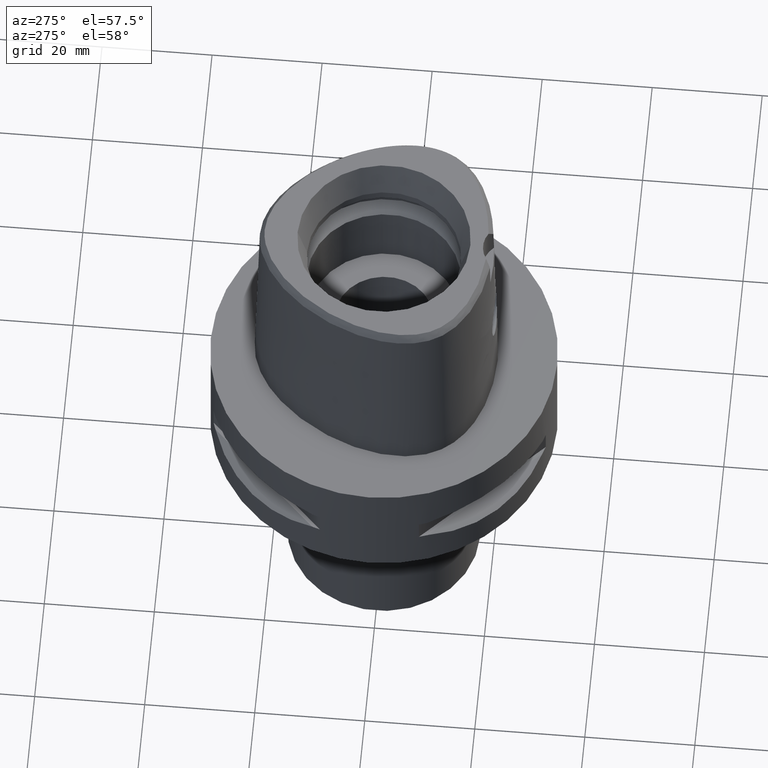
[diagram: clean part render]
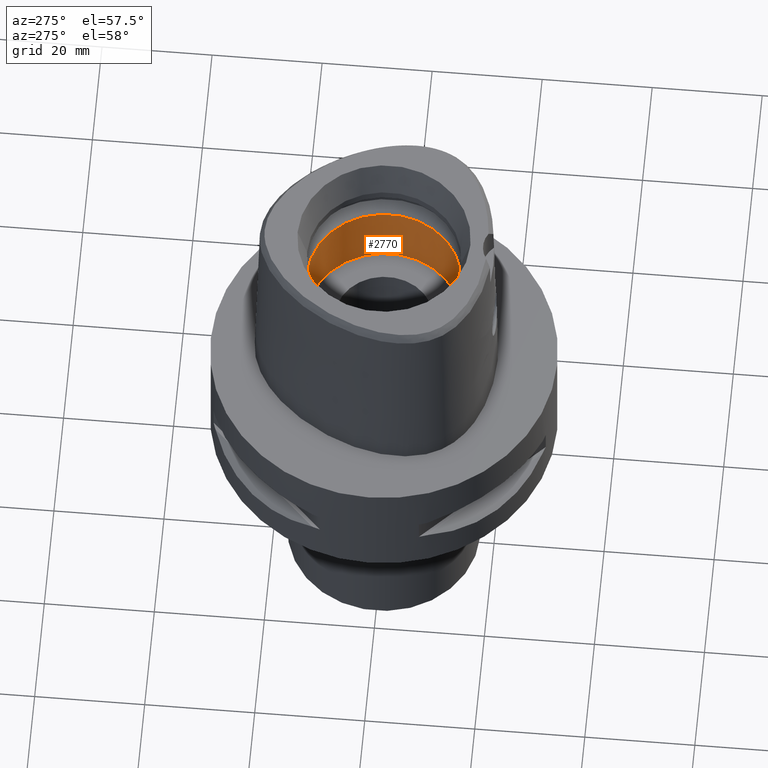
[diagram: same view with one face highlighted and labeled with its STEP entity id]
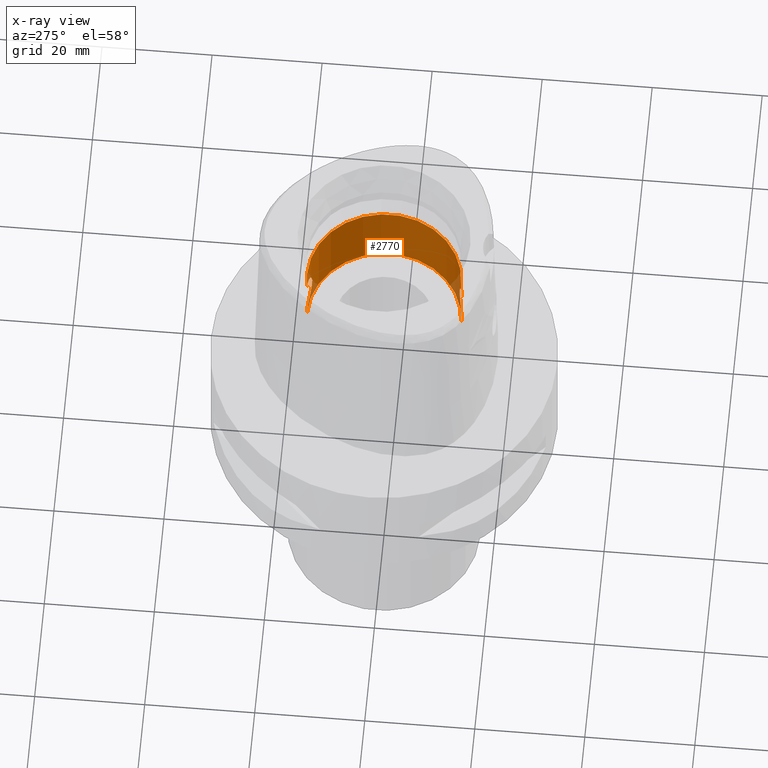
[diagram: x-ray of the same camera — body ghosted, the highlighted face saturated]
A machine part, auxiliary view. The second image highlights one B-rep face of the part: STEP entity #2770.
The next image is the same camera in x-ray: the body ghosted, the highlighted face saturated — about 5% of this face is hidden behind the body in this view.
In plain terms, the highlighted cylindrical surface (partial cylindrical patch) has radius 14 mm, axis along (0, 0, -1).
Its self-contained STEP definition (entity closure, byte-faithful):
#28 = CARTESIAN_POINT ( 'NONE',  ( 1.564210624766627200, 13.91222855110749101, 19.23574712250458418 ) ) ;
#55 = CARTESIAN_POINT ( 'NONE',  ( 3.563130269149018758, 13.54014351603372823, 13.57157088246568932 ) ) ;
#76 = CARTESIAN_POINT ( 'NONE',  ( 1.905613305038924787, -13.87057864225509007, 19.08359231514317855 ) ) ;
#77 = CARTESIAN_POINT ( 'NONE',  ( 3.735585966644410671, 13.49246493437206951, 13.93542173753079183 ) ) ;
#112 = LINE ( 'NONE', #2970, #2820 ) ;
#129 = CARTESIAN_POINT ( 'NONE',  ( 2.696297295243412329, -13.73777050177580250, 18.52227094411475505 ) ) ;
#152 = CARTESIAN_POINT ( 'NONE',  ( 1.467347860776915702, -13.92282749422781052, 19.27490393189151519 ) ) ;
#176 = CARTESIAN_POINT ( 'NONE',  ( 3.036969449543563737, -13.66684610098209873, 12.82026298262619335 ) ) ;
#204 = DIRECTION ( 'NONE',  ( 0.0000000000000000000, 0.0000000000000000000, 1.000000000000000000 ) ) ;
#230 = CARTESIAN_POINT ( 'NONE',  ( 4.028563343506847971, -13.40834963425283455, 15.00910056068194187 ) ) ;
#236 = CARTESIAN_POINT ( 'NONE',  ( 1.467318237211732157, 13.92283067901672311, 11.72508455660882376 ) ) ;
#252 = CARTESIAN_POINT ( 'NONE',  ( 4.050615257898495969, -13.40134231867271275, 15.26307483630576556 ) ) ;
#255 = CARTESIAN_POINT ( 'NONE',  ( 0.0000000000000000000, -14.00000000000000000, 19.55000000000000071 ) ) ;
#271 = CYLINDRICAL_SURFACE ( 'NONE', #721, 14.00000000000000000 ) ;
#276 = VECTOR ( 'NONE', #4521, 1000.000000000000000 ) ;
#343 = CARTESIAN_POINT ( 'NONE',  ( 1.778118724833712694, 13.88617459671725918, 19.13924404090247933 ) ) ;
#368 = CARTESIAN_POINT ( 'NONE',  ( 3.799526332844893606, 13.47459461742394637, 16.90289822853951662 ) ) ;
#390 = CARTESIAN_POINT ( 'NONE',  ( 3.956594754651117540, 13.42963386916571622, 16.37453422178073126 ) ) ;
#415 = CARTESIAN_POINT ( 'NONE',  ( 2.641533738676335563, 13.75094225078649579, 18.59081068668895043 ) ) ;
#441 = CARTESIAN_POINT ( 'NONE',  ( 2.923620669437840824, 13.69136159373058881, 18.30302462415772169 ) ) ;
#485 = CARTESIAN_POINT ( 'NONE',  ( 1.204131520715787662, -13.94803745008500684, 19.36743101498653274 ) ) ;
#489 = DIRECTION ( 'NONE',  ( 0.0000000000000000000, 0.0000000000000000000, 1.000000000000000000 ) ) ;
#562 = VERTEX_POINT ( 'NONE', #3168 ) ;
#563 = CARTESIAN_POINT ( 'NONE',  ( 3.956537715202423033, -13.42965071004100253, 14.62520829552216028 ) ) ;
#583 = FACE_OUTER_BOUND ( 'NONE', #732, .T. ) ;
#599 = CARTESIAN_POINT ( 'NONE',  ( 2.543957654893721720, 13.76654167260480932, 12.34776481925748826 ) ) ;
#613 = CARTESIAN_POINT ( 'NONE',  ( 3.594063061712033491, -13.53275886322805377, 13.61445040981497634 ) ) ;
#619 = CARTESIAN_POINT ( 'NONE',  ( 2.787836229070041139, 13.71962564258199713, 12.56193802601182163 ) ) ;
#639 = CARTESIAN_POINT ( 'NONE',  ( 1.204107660659616608, 13.94803959449837372, 11.63256158311973820 ) ) ;
#664 = CARTESIAN_POINT ( 'NONE',  ( 0.5001887921304404294, 13.99307194593311543, 11.47259148992649891 ) ) ;
#703 = CARTESIAN_POINT ( 'NONE',  ( 3.845331375847745647, 13.46195391861095381, 14.19844437814360916 ) ) ;
#721 = AXIS2_PLACEMENT_3D ( 'NONE', #1323, #4588, #3918 ) ;
#727 = CARTESIAN_POINT ( 'NONE',  ( 3.638093724904270410, 13.51964343916870170, 13.71959749132893869 ) ) ;
#732 = EDGE_LOOP ( 'NONE', ( #3568, #2220, #3025, #2569, #1686, #1899, #1213, #4467 ) ) ;
#776 = CARTESIAN_POINT ( 'NONE',  ( 3.307142086768418920, 13.60519109280302885, 17.84281709866624510 ) ) ;
#801 = CARTESIAN_POINT ( 'NONE',  ( 1.657538681101234701, 13.90132017254255459, 19.19536803047576612 ) ) ;
#827 = CARTESIAN_POINT ( 'NONE',  ( 3.722600532248694805, -13.49608364878876721, 17.09529591117903635 ) ) ;
#873 = CARTESIAN_POINT ( 'NONE',  ( 3.504061043903227368, -13.55592151725730510, 17.53515547141299180 ) ) ;
#905 = CARTESIAN_POINT ( 'NONE',  ( 3.691876156449529489, -13.50467165015234272, 17.16528249247149418 ) ) ;
#909 = DIRECTION ( 'NONE',  ( 0.0000000000000000000, 0.0000000000000000000, -1.000000000000000000 ) ) ;
#925 = CARTESIAN_POINT ( 'NONE',  ( 0.0000000000000000000, 14.00000000000000000, 11.44999999999999929 ) ) ;
#999 = CARTESIAN_POINT ( 'NONE',  ( 0.0000000000000000000, -14.00000000000000000, 11.44999999999999929 ) ) ;
#1018 = CARTESIAN_POINT ( 'NONE',  ( 2.641465220681782355, -13.75095497177634840, 12.40913701618807963 ) ) ;
#1066 = CARTESIAN_POINT ( 'NONE',  ( 3.387130569202020602, 13.58555161972830660, 17.72426853512659761 ) ) ;
#1084 = CARTESIAN_POINT ( 'NONE',  ( 1.931951184100931362, 13.86546511195666831, 19.06135903520622321 ) ) ;
#1088 = CARTESIAN_POINT ( 'NONE',  ( 0.8836603706618929577, -13.97228664004533272, 19.45456345312424773 ) ) ;
#1099 = CARTESIAN_POINT ( 'NONE',  ( 0.0000000000000000000, -14.00000000000000000, 11.00000000000000000 ) ) ;
#1107 = CARTESIAN_POINT ( 'NONE',  ( 3.688524342739305073, 13.50565341645663331, 17.18231081963391915 ) ) ;
#1108 = AXIS2_PLACEMENT_3D ( 'NONE', #4190, #909, #2782 ) ;
#1133 = CARTESIAN_POINT ( 'NONE',  ( 3.660784725972579423, 13.51334330084115898, 13.76690560851314515 ) ) ;
#1156 = CARTESIAN_POINT ( 'NONE',  ( 1.622725296849131027, 13.90550738991620783, 19.21083870775105140 ) ) ;
#1208 = CARTESIAN_POINT ( 'NONE',  ( 3.733521030329874257, -13.49303965136769179, 17.06949940143048039 ) ) ;
#1211 = CARTESIAN_POINT ( 'NONE',  ( 0.0000000000000000000, 0.0000000000000000000, 24.19999999999999929 ) ) ;
#1213 = ORIENTED_EDGE ( 'NONE', *, *, #3628, .F. ) ;
#1235 = LINE ( 'NONE', #3414, #276 ) ;
#1253 = CARTESIAN_POINT ( 'NONE',  ( 1.495135601439473882, -13.91986738803147716, 19.26393374798292513 ) ) ;
#1280 = CARTESIAN_POINT ( 'NONE',  ( 1.029796920956629558, -13.97145047535848761, 11.54362483171986931 ) ) ;
#1305 = CARTESIAN_POINT ( 'NONE',  ( 3.009315713624424848, -13.67289943054445267, 12.78922497806521541 ) ) ;
#1323 = CARTESIAN_POINT ( 'NONE',  ( 0.0000000000000000000, 0.0000000000000000000, 39.89999999999999858 ) ) ;
#1329 = CARTESIAN_POINT ( 'NONE',  ( 3.767316673777939329, -13.48363053463365979, 14.01340906027987110 ) ) ;
#1355 = CARTESIAN_POINT ( 'NONE',  ( 1.657556170273537965, -13.90131823402500011, 11.80463981960784814 ) ) ;
#1376 = CARTESIAN_POINT ( 'NONE',  ( 1.583501568796418901, -13.91004388702061334, 11.77236334942258367 ) ) ;
#1420 = CARTESIAN_POINT ( 'NONE',  ( 2.696203929279447298, 13.73778891820755099, 12.47764582470322203 ) ) ;
#1428 = EDGE_CURVE ( 'NONE', #2928, #3057, #2434, .T. ) ;
#1440 = CARTESIAN_POINT ( 'NONE',  ( 0.4993351438969862999, 14.00000000000000178, 19.54999999999999716 ) ) ;
#1459 = CARTESIAN_POINT ( 'NONE',  ( 2.817063758270675677, 13.71368109032355598, 12.58990467031703453 ) ) ;
#1485 = CARTESIAN_POINT ( 'NONE',  ( 3.757376369178055064, 13.48641083289560072, 17.01149953624119959 ) ) ;
#1486 = AXIS2_PLACEMENT_3D ( 'NONE', #1211, #489, #2685 ) ;
#1511 = VERTEX_POINT ( 'NONE', #3607 ) ;
#1512 = CARTESIAN_POINT ( 'NONE',  ( 4.043508552942618905, 13.40358067117873020, 15.23702387037225314 ) ) ;
#1533 = CARTESIAN_POINT ( 'NONE',  ( 2.817171907541356823, -13.71365890168861235, 18.40999063198412955 ) ) ;
#1534 = CARTESIAN_POINT ( 'NONE',  ( 3.291655005537345691, 13.60974056524310249, 13.12540329187040022 ) ) ;
#1585 = CARTESIAN_POINT ( 'NONE',  ( 2.787937725841229231, -13.71960502957796635, 18.43796573435158592 ) ) ;
#1608 = CARTESIAN_POINT ( 'NONE',  ( 1.507035966350077860, -13.91858354768690553, 19.25917023648407422 ) ) ;
#1632 = CARTESIAN_POINT ( 'NONE',  ( 3.926049243425390856, -13.43854941904005607, 14.49677668496564387 ) ) ;
#1663 = CARTESIAN_POINT ( 'NONE',  ( 3.999880538878977987, -13.41686564840069451, 16.14886071348212582 ) ) ;
#1684 = CARTESIAN_POINT ( 'NONE',  ( 3.167178659285273312, -13.63772306331693152, 12.97465865916384686 ) ) ;
#1686 = ORIENTED_EDGE ( 'NONE', *, *, #4451, .T. ) ;
#1705 = CARTESIAN_POINT ( 'NONE',  ( 4.018633208182142980, -13.41119671094070220, 16.01933321084258921 ) ) ;
#1733 = CARTESIAN_POINT ( 'NONE',  ( 3.736100644584226860, -13.49232162799288304, 17.06335250281157556 ) ) ;
#1777 = CARTESIAN_POINT ( 'NONE',  ( 0.2466473169051789649, 14.00000000000000000, 11.44999999999999929 ) ) ;
#1787 = DIRECTION ( 'NONE',  ( 0.0000000000000000000, 0.0000000000000000000, 1.000000000000000000 ) ) ;
#1799 = CARTESIAN_POINT ( 'NONE',  ( 1.556026519971951627, 13.91314539776250037, 19.23915634082362658 ) ) ;
#1843 = CARTESIAN_POINT ( 'NONE',  ( 2.952251886932738767, 13.68523914736370628, 18.27281287601577731 ) ) ;
#1867 = CARTESIAN_POINT ( 'NONE',  ( 4.018599687299292178, 13.41120668237572033, 14.98040937680505280 ) ) ;
#1892 = CARTESIAN_POINT ( 'NONE',  ( 2.544037654573595209, -13.76652660865955191, 18.65217080514776526 ) ) ;
#1894 = CARTESIAN_POINT ( 'NONE',  ( 3.767407529347574613, 13.48360504218488032, 16.98636067505537994 ) ) ;
#1899 = ORIENTED_EDGE ( 'NONE', *, *, #3843, .T. ) ;
#1954 = DIRECTION ( 'NONE',  ( 0.0000000000000000000, 0.0000000000000000000, 1.000000000000000000 ) ) ;
#1991 = CARTESIAN_POINT ( 'NONE',  ( 3.387031302037708969, -13.58557624210182269, 13.27558084072061995 ) ) ;
#2020 = CARTESIAN_POINT ( 'NONE',  ( 1.622743609123507680, -13.90550536781776891, 11.78916930358022874 ) ) ;
#2054 = CARTESIAN_POINT ( 'NONE',  ( 2.726747288564923988, 13.73181662119607616, 12.50515639349654862 ) ) ;
#2069 = CARTESIAN_POINT ( 'NONE',  ( 2.952153836414152188, -13.68526022525729502, 12.72708276179081643 ) ) ;
#2090 = LINE ( 'NONE', #2778, #4642 ) ;
#2096 = CARTESIAN_POINT ( 'NONE',  ( 1.300093414498268318, 13.93959602860435787, 11.66329971178227787 ) ) ;
#2144 = LINE ( 'NONE', #2501, #2259 ) ;
#2153 = CARTESIAN_POINT ( 'NONE',  ( 3.999839952350451089, 13.41687763481716900, 14.85089072229088991 ) ) ;
#2177 = CARTESIAN_POINT ( 'NONE',  ( 3.733444988870166181, 13.49306082550000951, 13.93031972406414809 ) ) ;
#2183 = VERTEX_POINT ( 'NONE', #4203 ) ;
#2201 = CARTESIAN_POINT ( 'NONE',  ( 3.594160506230302143, 13.53273292120477223, 17.38536635489295890 ) ) ;
#2220 = ORIENTED_EDGE ( 'NONE', *, *, #3777, .T. ) ;
#2226 = CARTESIAN_POINT ( 'NONE',  ( 3.037068109249565051, 13.66682429463433657, 18.17962523185089907 ) ) ;
#2253 = CARTESIAN_POINT ( 'NONE',  ( 1.411695788688407838, -13.92860562152304560, 19.29626673397523007 ) ) ;
#2254 = CARTESIAN_POINT ( 'NONE',  ( 3.926113768225104383, 13.43853056810077717, 16.50297121896115016 ) ) ;
#2259 = VECTOR ( 'NONE', #1787, 1000.000000000000000 ) ;
#2280 = CARTESIAN_POINT ( 'NONE',  ( 3.563211133083067139, -13.54012200210101291, 17.42828004916341555 ) ) ;
#2308 = EDGE_CURVE ( 'NONE', #4064, #4078, #4205, .T. ) ;
#2363 = EDGE_CURVE ( 'NONE', #2183, #2928, #2090, .T. ) ;
#2386 = CARTESIAN_POINT ( 'NONE',  ( 3.735661959779876806, -13.49244376582913141, 17.06439680939959658 ) ) ;
#2418 = CARTESIAN_POINT ( 'NONE',  ( 0.0000000000000000000, 14.00000000000000000, 11.44999999999999929 ) ) ;
#2434 = B_SPLINE_CURVE_WITH_KNOTS ( 'NONE', 3,
 ( #2418, #1777, #664, #3245, #3929, #639, #2096, #4692, #236, #3209, #4675, #4274, #3524, #2851, #3594, #3883, #4713, #599, #4626, #1420, #2054, #619, #1459, #4444, #1534, #3339, #55, #727, #1133, #2603, #2581, #2909, #3992, #2177, #77, #4354, #703, #3676, #2153, #1867, #1512, #3655, #3630, #4063, #390, #2254, #4424, #3700, #368, #2959, #1894, #3362, #2930, #1485, #1107, #2201, #1066, #776, #4373, #3730, #2226, #2982, #1843, #441, #415, #4396, #4085, #1084, #343, #3312, #801, #1156, #2529, #28, #1799, #2628, #3270, #4737, #1440, #2549 ),
 .UNSPECIFIED., .F., .F.,
 ( 4, 2, 2, 1, 1, 1, 1, 2, 2, 2, 2, 2, 2, 2, 2, 2, 2, 1, 1, 1, 2, 2, 2, 2, 2, 2, 2, 1, 1, 1, 1, 2, 2, 2, 2, 2, 2, 2, 2, 2, 2, 1, 1, 1, 2, 2, 4 ),
 ( 0.0000000000000000000, 0.06250000000003469447, 0.09375000000005201395, 0.1093750000000606737, 0.1171875000000650729, 0.1210937500000672518, 0.1230468750000683620, 0.1240234375000689587, 0.1250000000000695555, 0.1875000000001078027, 0.2187500000001268430, 0.2343750000001363909, 0.2421875000001411649, 0.2500000000001459388, 0.3125000000001855183, 0.3437500000002051692, 0.3593750000002147171, 0.3671875000002197686, 0.3710937500002223222, 0.3730468750002235434, 0.3740234375002239320, 0.3750000000002243206, 0.4375000000002328693, 0.4687500000002371436, 0.5000000000002414735, 0.5625000000002500222, 0.5937500000002547962, 0.6093750000002571277, 0.6171875000002579048, 0.6210937500002582379, 0.6230468750002580158, 0.6240234375002579048, 0.6250000000002577938, 0.6875000000002172706, 0.7187500000001971756, 0.7343750000001870726, 0.7421875000001822986, 0.7500000000001775247, 0.8125000000001385558, 0.8437500000001191269, 0.8593750000001093570, 0.8671875000001044720, 0.8710937500001022515, 0.8730468750001009193, 0.8740234375001002531, 0.8750000000000995870, 1.000000000000000000 ),
 .UNSPECIFIED. ) ;
#2439 = CARTESIAN_POINT ( 'NONE',  ( 1.550606134193257324, -13.91375049961257382, 11.75859260590190125 ) ) ;
#2460 = CARTESIAN_POINT ( 'NONE',  ( 3.757284117936878776, -13.48643666241545880, 13.98827116088857458 ) ) ;
#2480 = CARTESIAN_POINT ( 'NONE',  ( 3.839593630540033331, -13.46329218409579731, 14.20847911796517415 ) ) ;
#2501 = CARTESIAN_POINT ( 'NONE',  ( 0.0000000000000000000, -14.00000000000000000, 19.55000000000000071 ) ) ;
#2529 = CARTESIAN_POINT ( 'NONE',  ( 1.583482811711634852, 13.91004592301637821, 19.22764461882236731 ) ) ;
#2549 = CARTESIAN_POINT ( 'NONE',  ( 0.0000000000000000000, 14.00000000000000000, 19.55000000000000071 ) ) ;
#2569 = ORIENTED_EDGE ( 'NONE', *, *, #2308, .F. ) ;
#2581 = CARTESIAN_POINT ( 'NONE',  ( 3.706550267836298040, 13.50056769375133214, 13.86753784209087037 ) ) ;
#2603 = CARTESIAN_POINT ( 'NONE',  ( 3.691799083173685769, 13.50469292429107426, 13.83454667600461896 ) ) ;
#2628 = CARTESIAN_POINT ( 'NONE',  ( 1.550587272344413181, 13.91375250322492896, 19.24141521122971454 ) ) ;
#2654 = CARTESIAN_POINT ( 'NONE',  ( 1.011983535294310288, -13.96362621505950052, 19.42380055860864729 ) ) ;
#2656 = CIRCLE ( 'NONE', #1108, 14.00000000000000000 ) ;
#2685 = DIRECTION ( 'NONE',  ( 0.0000000000000000000, -1.000000000000000000, 0.0000000000000000000 ) ) ;
#2755 = CARTESIAN_POINT ( 'NONE',  ( 0.4993427178057255889, -14.00000000000000178, 11.44999999999999751 ) ) ;
#2770 = ADVANCED_FACE ( 'NONE', ( #583 ), #271, .F. ) ;
#2778 = CARTESIAN_POINT ( 'NONE',  ( 0.0000000000000000000, 14.00000000000000000, 11.00000000000000000 ) ) ;
#2782 = DIRECTION ( 'NONE',  ( 0.0000000000000000000, 1.000000000000000000, 0.0000000000000000000 ) ) ;
#2805 = CARTESIAN_POINT ( 'NONE',  ( 1.778131749887618795, -13.88617322347828242, 11.86076237412944323 ) ) ;
#2820 = VECTOR ( 'NONE', #1954, 1000.000000000000000 ) ;
#2829 = CARTESIAN_POINT ( 'NONE',  ( 1.564229473915988766, -13.91222652906653323, 11.76426076996048486 ) ) ;
#2851 = CARTESIAN_POINT ( 'NONE',  ( 1.698601506125804850, 13.89766558767743732, 11.81852995632579351 ) ) ;
#2909 = CARTESIAN_POINT ( 'NONE',  ( 3.722524237582792050, 13.49610485082508582, 13.90452608053416661 ) ) ;
#2913 = CARTESIAN_POINT ( 'NONE',  ( 1.300119369164095318, -13.93959353572381232, 19.33669154414204172 ) ) ;
#2928 = VERTEX_POINT ( 'NONE', #925 ) ;
#2930 = CARTESIAN_POINT ( 'NONE',  ( 3.759506418873792999, 13.48581536632238986, 17.00619710899272974 ) ) ;
#2959 = CARTESIAN_POINT ( 'NONE',  ( 3.778305669201093231, 13.48055238949580215, 16.95856609150359873 ) ) ;
#2970 = CARTESIAN_POINT ( 'NONE',  ( 0.0000000000000000000, -14.00000000000000000, 11.00000000000000000 ) ) ;
#2982 = CARTESIAN_POINT ( 'NONE',  ( 3.009414190541668699, 13.67287786053440257, 18.21066572617562684 ) ) ;
#3006 = CARTESIAN_POINT ( 'NONE',  ( 3.660862647134828229, -13.51332196062710800, 17.23292989355701010 ) ) ;
#3025 = ORIENTED_EDGE ( 'NONE', *, *, #4709, .T. ) ;
#3057 = VERTEX_POINT ( 'NONE', #3942 ) ;
#3058 = CARTESIAN_POINT ( 'NONE',  ( 2.604814970910779959, -13.75531988744148748, 18.60225756880824477 ) ) ;
#3079 = CARTESIAN_POINT ( 'NONE',  ( 1.514967565580930042, -13.91772427114534061, 19.25598077018215903 ) ) ;
#3105 = CARTESIAN_POINT ( 'NONE',  ( 3.778216258622651758, -13.48057753505390544, 14.04120232643145094 ) ) ;
#3135 = CARTESIAN_POINT ( 'NONE',  ( 3.870111876806054063, -13.45459500814313536, 14.30451307769088665 ) ) ;
#3157 = CARTESIAN_POINT ( 'NONE',  ( 3.923413124950513087, -13.43944707946804051, 16.53903207562585820 ) ) ;
#3168 = CARTESIAN_POINT ( 'NONE',  ( 0.0000000000000000000, -14.00000000000000000, 24.19999999999999929 ) ) ;
#3179 = CARTESIAN_POINT ( 'NONE',  ( 4.043526632787401986, -13.40357524847896009, 15.76270176194183037 ) ) ;
#3205 = CARTESIAN_POINT ( 'NONE',  ( 3.845400796500094920, -13.46193419176275441, 16.80135387458535234 ) ) ;
#3209 = CARTESIAN_POINT ( 'NONE',  ( 1.495105367967755505, 13.91987069497938556, 11.73605424346445503 ) ) ;
#3245 = CARTESIAN_POINT ( 'NONE',  ( 0.8836434047695665983, 13.97228778373246882, 11.54543284708634410 ) ) ;
#3270 = CARTESIAN_POINT ( 'NONE',  ( 1.549199780804503712, 13.91390734428968123, 19.24199131662959061 ) ) ;
#3274 = CARTESIAN_POINT ( 'NONE',  ( 0.0000000000000000000, -14.00000000000000000, 19.55000000000000071 ) ) ;
#3312 = CARTESIAN_POINT ( 'NONE',  ( 1.728676483033842581, 13.89254967626864889, 19.16290800553910145 ) ) ;
#3339 = CARTESIAN_POINT ( 'NONE',  ( 3.503978261250972004, 13.55594311645364769, 13.46470225885367000 ) ) ;
#3362 = CARTESIAN_POINT ( 'NONE',  ( 3.762675109122550765, 13.48492912904872476, 16.99826375110689725 ) ) ;
#3410 = CARTESIAN_POINT ( 'NONE',  ( 1.520150359541682539, -13.91715988396623871, 19.25388487642710089 ) ) ;
#3414 = CARTESIAN_POINT ( 'NONE',  ( 0.0000000000000000000, 14.00000000000000000, 19.55000000000000071 ) ) ;
#3461 = CARTESIAN_POINT ( 'NONE',  ( 1.728691752909000456, -13.89254800047140925, 11.83709922258549696 ) ) ;
#3487 = CARTESIAN_POINT ( 'NONE',  ( 1.556045380495072017, -13.91314338618146174, 11.76085150791659473 ) ) ;
#3518 = CARTESIAN_POINT ( 'NONE',  ( 1.931955345600445018, -13.86546502862670494, 11.93864343084725554 ) ) ;
#3524 = CARTESIAN_POINT ( 'NONE',  ( 1.520119452616843780, 13.91716331625239711, 11.74610260779397564 ) ) ;
#3539 = CARTESIAN_POINT ( 'NONE',  ( 4.049672749216517431, -13.40162144772051711, 15.63390294780562328 ) ) ;
#3568 = ORIENTED_EDGE ( 'NONE', *, *, #2363, .F. ) ;
#3594 = CARTESIAN_POINT ( 'NONE',  ( 1.905579595511185831, 13.87058351724109606, 11.91639121080155839 ) ) ;
#3607 = CARTESIAN_POINT ( 'NONE',  ( 0.0000000000000000000, 14.00000000000000000, 24.19999999999999929 ) ) ;
#3628 = EDGE_CURVE ( 'NONE', #3057, #1511, #1235, .T. ) ;
#3630 = CARTESIAN_POINT ( 'NONE',  ( 4.050632241946614087, 13.40133688580687910, 15.73664305986978817 ) ) ;
#3655 = CARTESIAN_POINT ( 'NONE',  ( 4.049663135455287666, 13.40162430786245729, 15.36580289252393072 ) ) ;
#3676 = CARTESIAN_POINT ( 'NONE',  ( 3.923353501275949728, 13.43946433267036156, 14.46074675880546323 ) ) ;
#3700 = CARTESIAN_POINT ( 'NONE',  ( 3.839674187383975479, 13.46326920650528614, 16.79128151811982406 ) ) ;
#3729 = CARTESIAN_POINT ( 'NONE',  ( 2.363446819360152773, -13.79866816463658097, 18.79239314525364790 ) ) ;
#3730 = CARTESIAN_POINT ( 'NONE',  ( 3.117343615483458397, 13.64904482947796005, 18.08676731009481031 ) ) ;
#3752 = CARTESIAN_POINT ( 'NONE',  ( 3.730288871443382170, -13.49393972835890487, 17.07718079494796726 ) ) ;
#3774 = CARTESIAN_POINT ( 'NONE',  ( 0.5001978451839145245, -13.99307166001133496, 19.52740774413650726 ) ) ;
#3777 = EDGE_CURVE ( 'NONE', #2183, #4040, #2656, .T. ) ;
#3843 = EDGE_CURVE ( 'NONE', #562, #1511, #3882, .T. ) ;
#3875 = CARTESIAN_POINT ( 'NONE',  ( 2.388006222796659639, -13.79546044621527479, 12.21758320063901238 ) ) ;
#3882 = CIRCLE ( 'NONE', #1486, 14.00000000000000000 ) ;
#3883 = CARTESIAN_POINT ( 'NONE',  ( 2.245362918411338615, 13.81813395121205446, 12.12678317450011178 ) ) ;
#3900 = CARTESIAN_POINT ( 'NONE',  ( 2.041887812786296497, -13.84954774689604839, 11.99974606618241424 ) ) ;
#3918 = DIRECTION ( 'NONE',  ( 0.0000000000000000000, -1.000000000000000000, 0.0000000000000000000 ) ) ;
#3922 = CARTESIAN_POINT ( 'NONE',  ( 3.688429457990697991, -13.50567961613250567, 13.81748336485046735 ) ) ;
#3927 = CARTESIAN_POINT ( 'NONE',  ( 0.0000000000000000000, -14.00000000000000000, 11.44999999999999929 ) ) ;
#3929 = CARTESIAN_POINT ( 'NONE',  ( 1.011963835434019465, 13.96362771614886178, 11.57619446671275298 ) ) ;
#3942 = CARTESIAN_POINT ( 'NONE',  ( 0.0000000000000000000, 14.00000000000000000, 19.55000000000000071 ) ) ;
#3947 = CARTESIAN_POINT ( 'NONE',  ( 3.799439838583506646, -13.47461905682587258, 14.09686757195646400 ) ) ;
#3992 = CARTESIAN_POINT ( 'NONE',  ( 3.730212756374854166, 13.49396091087114158, 13.92263919581537124 ) ) ;
#4040 = VERTEX_POINT ( 'NONE', #1099 ) ;
#4063 = CARTESIAN_POINT ( 'NONE',  ( 4.028597051389892769, 13.40833927613269694, 15.99062656667382676 ) ) ;
#4064 = VERTEX_POINT ( 'NONE', #255 ) ;
#4078 = VERTEX_POINT ( 'NONE', #3927 ) ;
#4085 = CARTESIAN_POINT ( 'NONE',  ( 2.041892423800365286, 13.84954646064108275, 19.00025176237583224 ) ) ;
#4113 = CARTESIAN_POINT ( 'NONE',  ( 3.706626952985152990, -13.50054645278323839, 17.13228807975495016 ) ) ;
#4159 = CARTESIAN_POINT ( 'NONE',  ( 3.638172306507568621, -13.51962205525902938, 17.28024202003368259 ) ) ;
#4186 = CARTESIAN_POINT ( 'NONE',  ( 3.291745031367118379, -13.60971871451110360, 17.87447278724340904 ) ) ;
#4190 = CARTESIAN_POINT ( 'NONE',  ( 0.0000000000000000000, 0.0000000000000000000, 11.00000000000000000 ) ) ;
#4203 = CARTESIAN_POINT ( 'NONE',  ( 0.0000000000000000000, 14.00000000000000000, 11.00000000000000000 ) ) ;
#4205 = B_SPLINE_CURVE_WITH_KNOTS ( 'NONE', 3,
 ( #3274, #4469, #3774, #1088, #2654, #485, #2913, #2253, #152, #1253, #1608, #3079, #3410, #4539, #76, #4377, #3729, #1892, #3058, #129, #4495, #1585, #1533, #4518, #4186, #873, #2280, #4159, #3006, #905, #4113, #827, #3752, #1208, #2386, #1733, #3205, #3157, #1663, #1705, #3179, #3539, #252, #230, #563, #1632, #3135, #2480, #3947, #3105, #1329, #4566, #4291, #2460, #3922, #613, #1991, #4646, #1684, #4620, #176, #1305, #2069, #4310, #1018, #3875, #3900, #3518, #2805, #3461, #1355, #2020, #1376, #2829, #3487, #2439, #4669, #1280, #2755, #999 ),
 .UNSPECIFIED., .F., .F.,
 ( 4, 2, 2, 1, 1, 1, 1, 2, 2, 2, 2, 2, 2, 2, 2, 2, 2, 1, 1, 1, 2, 2, 2, 2, 2, 2, 2, 1, 1, 1, 1, 2, 2, 2, 2, 2, 2, 2, 2, 2, 2, 1, 1, 1, 2, 2, 4 ),
 ( 0.0000000000000000000, 0.06250000000003565204, 0.09375000000005341561, 0.1093750000000624223, 0.1171875000000667660, 0.1210937500000687922, 0.1230468750000697775, 0.1240234375000701383, 0.1250000000000704992, 0.1875000000000755784, 0.2187500000000781597, 0.2343750000000791867, 0.2421875000000797418, 0.2500000000000803246, 0.3125000000000828226, 0.3437500000000840439, 0.3593750000000846545, 0.3671875000000849321, 0.3710937500000855427, 0.3730468750000858758, 0.3740234375000860978, 0.3750000000000863198, 0.4375000000000753841, 0.4687500000000698885, 0.5000000000000643929, 0.5625000000000538458, 0.5937500000000484057, 0.6093750000000456302, 0.6171875000000444089, 0.6210937500000437428, 0.6230468750000436318, 0.6240234375000435207, 0.6250000000000434097, 0.6875000000000320854, 0.7187500000000264233, 0.7343750000000235367, 0.7421875000000222045, 0.7500000000000208722, 0.8125000000000117684, 0.8437500000000071054, 0.8593750000000047740, 0.8671875000000036637, 0.8710937500000031086, 0.8730468750000027756, 0.8740234375000027756, 0.8750000000000027756, 1.000000000000000000 ),
 .UNSPECIFIED. ) ;
#4274 = CARTESIAN_POINT ( 'NONE',  ( 1.514936896904012453, 13.91772766653630988, 11.74400685993466986 ) ) ;
#4291 = CARTESIAN_POINT ( 'NONE',  ( 3.759414536511823890, -13.48584110404582326, 13.99357357082878828 ) ) ;
#4310 = CARTESIAN_POINT ( 'NONE',  ( 2.923519510462486704, -13.69138312979934291, 12.69686997631090719 ) ) ;
#4354 = CARTESIAN_POINT ( 'NONE',  ( 3.736024596692317790, 13.49234281338135766, 13.93646577099193351 ) ) ;
#4373 = CARTESIAN_POINT ( 'NONE',  ( 3.167277967067446909, 13.63770016276544261, 18.02521691430628437 ) ) ;
#4377 = CARTESIAN_POINT ( 'NONE',  ( 2.245418565620246998, -13.81812439171837958, 18.87318016900099593 ) ) ;
#4396 = CARTESIAN_POINT ( 'NONE',  ( 2.388043640912949073, 13.79545352226877952, 18.78239178810953547 ) ) ;
#4424 = CARTESIAN_POINT ( 'NONE',  ( 3.870187166745356233, 13.45457336838944506, 16.69524325605181758 ) ) ;
#4444 = CARTESIAN_POINT ( 'NONE',  ( 3.103360407124486464, 13.65413706114235559, 12.87324361087772040 ) ) ;
#4451 = EDGE_CURVE ( 'NONE', #4064, #562, #2144, .T. ) ;
#4467 = ORIENTED_EDGE ( 'NONE', *, *, #1428, .F. ) ;
#4469 = CARTESIAN_POINT ( 'NONE',  ( 0.2466514923462641562, -14.00000000000000000, 19.54999999999999716 ) ) ;
#4495 = CARTESIAN_POINT ( 'NONE',  ( 2.726843365239512984, -13.73179748924748367, 18.49475619722909414 ) ) ;
#4518 = CARTESIAN_POINT ( 'NONE',  ( 3.103457239433744075, -13.65411504839352475, 18.12664184750138219 ) ) ;
#4521 = DIRECTION ( 'NONE',  ( 0.0000000000000000000, 0.0000000000000000000, 1.000000000000000000 ) ) ;
#4539 = CARTESIAN_POINT ( 'NONE',  ( 1.698628234465434872, -13.89766223500133435, 19.18145751515669417 ) ) ;
#4566 = CARTESIAN_POINT ( 'NONE',  ( 3.762583637099848222, -13.48495476883907962, 14.00150655067483640 ) ) ;
#4588 = DIRECTION ( 'NONE',  ( 0.0000000000000000000, 0.0000000000000000000, -1.000000000000000000 ) ) ;
#4620 = CARTESIAN_POINT ( 'NONE',  ( 3.117244495971513540, -13.64906731567723774, 12.91311337099730494 ) ) ;
#4626 = CARTESIAN_POINT ( 'NONE',  ( 2.604729675213169227, 13.75533623235526903, 12.39767105615039178 ) ) ;
#4642 = VECTOR ( 'NONE', #204, 1000.000000000000000 ) ;
#4646 = CARTESIAN_POINT ( 'NONE',  ( 3.307042540637299410, -13.60521511976482678, 13.15704293153118343 ) ) ;
#4669 = CARTESIAN_POINT ( 'NONE',  ( 1.549218669717522756, -13.91390533975291888, 11.75801650345907490 ) ) ;
#4675 = CARTESIAN_POINT ( 'NONE',  ( 1.507005471721585055, 13.91858690761686290, 11.74081753861026378 ) ) ;
#4692 = CARTESIAN_POINT ( 'NONE',  ( 1.411667386717301520, 13.92860856785765122, 11.70372271772446382 ) ) ;
#4709 = EDGE_CURVE ( 'NONE', #4040, #4078, #112, .T. ) ;
#4713 = CARTESIAN_POINT ( 'NONE',  ( 2.363382006260118740, 13.79867968580661497, 12.20756105130278968 ) ) ;
#4737 = CARTESIAN_POINT ( 'NONE',  ( 1.029782564022801328, 13.97145114007533095, 19.45637805625539940 ) ) ;